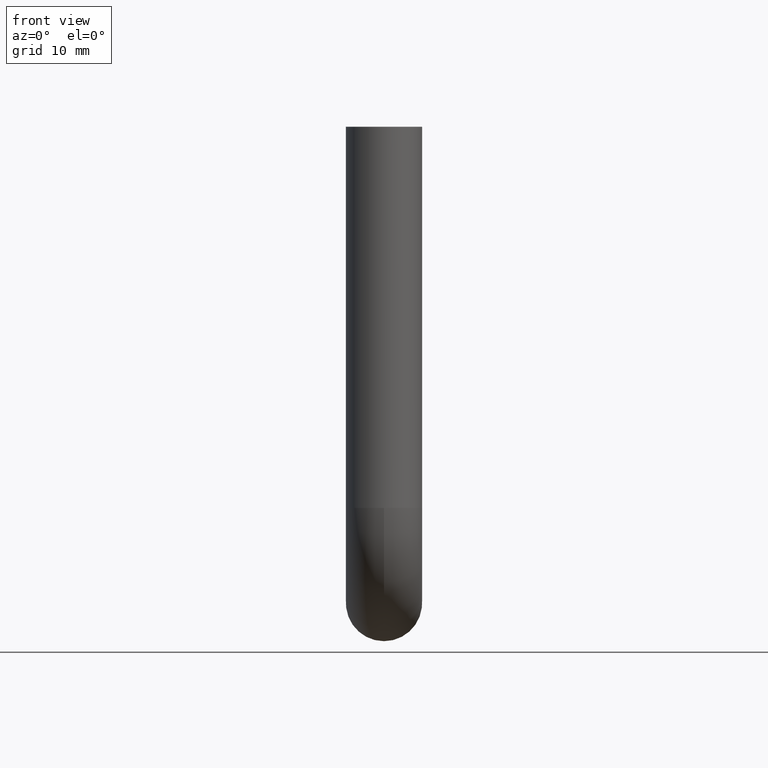
[diagram: clean part render]
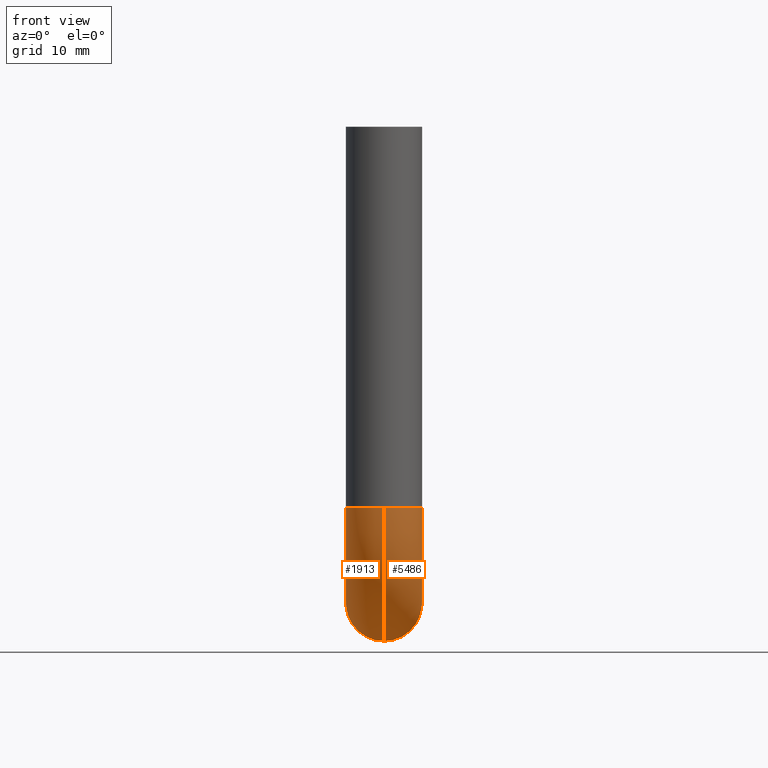
[diagram: same view with one multi-face feature highlighted, each face labeled with its STEP entity id]
A machine part, front view. The highlighted faces form ONE feature: a constant-radius fillet chain: 2 tangent blend faces with common blend radius 6 mm. The faces share edges in the B-rep.
Their STEP definitions:
[1] entity #5486 (Torus):
#335 = CARTESIAN_POINT ( 'NONE',  ( 7.347880794884114806E-16, 15.00000000000000000, -80.99999999999998579 ) ) ;
#791 = FACE_OUTER_BOUND ( 'NONE', #3436, .T. ) ;
#928 = DIRECTION ( 'NONE',  ( 0.000000000000000000, 0.000000000000000000, -1.000000000000000000 ) ) ;
#1084 = DIRECTION ( 'NONE',  ( 0.000000000000000000, 0.000000000000000000, 1.000000000000000000 ) ) ;
#1192 = VERTEX_POINT ( 'NONE', #7651 ) ;
#1432 = CARTESIAN_POINT ( 'NONE',  ( 6.000000000000000888, 0.000000000000000000, -60.00000000000000000 ) ) ;
#1637 = CIRCLE ( 'NONE', #8469, 8.999999999999994671 ) ;
#1750 = CARTESIAN_POINT ( 'NONE',  ( 0.000000000000000000, 15.00000000000000000, -60.00000000000000000 ) ) ;
#1871 = DIRECTION ( 'NONE',  ( 1.000000000000000000, 0.000000000000000000, 0.000000000000000000 ) ) ;
#2070 = ORIENTED_EDGE ( 'NONE', *, *, #7769, .T. ) ;
#2486 = VERTEX_POINT ( 'NONE', #335 ) ;
#2615 = ORIENTED_EDGE ( 'NONE', *, *, #2937, .F. ) ;
#2811 = DIRECTION ( 'NONE',  ( 0.000000000000000000, 0.000000000000000000, -1.000000000000000000 ) ) ;
#2937 = EDGE_CURVE ( 'NONE', #4955, #1192, #8272, .T. ) ;
#3436 = EDGE_LOOP ( 'NONE', ( #10654, #2070, #8893, #7530, #2615 ) ) ;
#3759 = AXIS2_PLACEMENT_3D ( 'NONE', #11131, #12173, #928 ) ;
#4955 = VERTEX_POINT ( 'NONE', #1432 ) ;
#5417 = CARTESIAN_POINT ( 'NONE',  ( 0.000000000000000000, 15.00000000000000000, -74.99999999999998579 ) ) ;
#5444 = AXIS2_PLACEMENT_3D ( 'NONE', #5417, #11039, #11284 ) ;
#5486 = ADVANCED_FACE ( 'NONE', ( #791 ), #11522, .T. ) ;
#5606 = CIRCLE ( 'NONE', #5444, 6.000000000000000888 ) ;
#5776 = VERTEX_POINT ( 'NONE', #5889 ) ;
#5889 = CARTESIAN_POINT ( 'NONE',  ( 0.000000000000000000, -6.000000000000001776, -60.00000000000000000 ) ) ;
#5996 = CIRCLE ( 'NONE', #8486, 6.000000000000000888 ) ;
#6546 = CARTESIAN_POINT ( 'NONE',  ( 0.000000000000000000, 15.00000000000000000, -68.99999999999997158 ) ) ;
#6774 = DIRECTION ( 'NONE',  ( 1.000000000000000000, 0.000000000000000000, 0.000000000000000000 ) ) ;
#6838 = DIRECTION ( 'NONE',  ( 1.000000000000000000, 0.000000000000000000, 0.000000000000000000 ) ) ;
#7122 = EDGE_CURVE ( 'NONE', #1192, #10622, #1637, .T. ) ;
#7530 = ORIENTED_EDGE ( 'NONE', *, *, #7122, .F. ) ;
#7651 = CARTESIAN_POINT ( 'NONE',  ( -7.347880794884119736E-16, 6.000000000000000888, -60.00000000000000000 ) ) ;
#7769 = EDGE_CURVE ( 'NONE', #5776, #2486, #12101, .T. ) ;
#7981 = AXIS2_PLACEMENT_3D ( 'NONE', #1750, #1871, #2811 ) ;
#8272 = CIRCLE ( 'NONE', #10126, 6.000000000000000888 ) ;
#8469 = AXIS2_PLACEMENT_3D ( 'NONE', #9709, #6838, #8831 ) ;
#8486 = AXIS2_PLACEMENT_3D ( 'NONE', #10537, #10660, #10700 ) ;
#8831 = DIRECTION ( 'NONE',  ( 0.000000000000000000, 0.000000000000000000, -1.000000000000000000 ) ) ;
#8893 = ORIENTED_EDGE ( 'NONE', *, *, #8990, .T. ) ;
#8990 = EDGE_CURVE ( 'NONE', #2486, #10622, #5606, .T. ) ;
#9709 = CARTESIAN_POINT ( 'NONE',  ( -7.347880794884120722E-16, 15.00000000000000000, -60.00000000000000000 ) ) ;
#10126 = AXIS2_PLACEMENT_3D ( 'NONE', #11207, #1084, #6774 ) ;
#10404 = EDGE_CURVE ( 'NONE', #5776, #4955, #5996, .T. ) ;
#10537 = CARTESIAN_POINT ( 'NONE',  ( 0.000000000000000000, 0.000000000000000000, -60.00000000000000000 ) ) ;
#10622 = VERTEX_POINT ( 'NONE', #6546 ) ;
#10654 = ORIENTED_EDGE ( 'NONE', *, *, #10404, .F. ) ;
#10660 = DIRECTION ( 'NONE',  ( 0.000000000000000000, 0.000000000000000000, 1.000000000000000000 ) ) ;
#10700 = DIRECTION ( 'NONE',  ( 1.000000000000000000, 0.000000000000000000, 0.000000000000000000 ) ) ;
#11039 = DIRECTION ( 'NONE',  ( 0.000000000000000000, -1.000000000000000000, 6.123233995736766036E-17 ) ) ;
#11131 = CARTESIAN_POINT ( 'NONE',  ( 0.000000000000000000, 15.00000000000000000, -60.00000000000000000 ) ) ;
#11207 = CARTESIAN_POINT ( 'NONE',  ( 0.000000000000000000, 0.000000000000000000, -60.00000000000000000 ) ) ;
#11284 = DIRECTION ( 'NONE',  ( 1.000000000000000000, 0.000000000000000000, 0.000000000000000000 ) ) ;
#11522 = TOROIDAL_SURFACE ( 'NONE', #3759, 15.00000000000000000, 6.000000000000000888 ) ;
#12101 = CIRCLE ( 'NONE', #7981, 21.00000000000000355 ) ;
#12173 = DIRECTION ( 'NONE',  ( 1.000000000000000000, 0.000000000000000000, 0.000000000000000000 ) ) ;
[2] entity #1913 (Torus):
#278 = DIRECTION ( 'NONE',  ( 0.000000000000000000, 0.000000000000000000, -1.000000000000000000 ) ) ;
#292 = DIRECTION ( 'NONE',  ( 1.000000000000000000, 0.000000000000000000, 0.000000000000000000 ) ) ;
#335 = CARTESIAN_POINT ( 'NONE',  ( 7.347880794884114806E-16, 15.00000000000000000, -80.99999999999998579 ) ) ;
#1061 = DIRECTION ( 'NONE',  ( 1.000000000000000000, 0.000000000000000000, 0.000000000000000000 ) ) ;
#1192 = VERTEX_POINT ( 'NONE', #7651 ) ;
#1637 = CIRCLE ( 'NONE', #8469, 8.999999999999994671 ) ;
#1750 = CARTESIAN_POINT ( 'NONE',  ( 0.000000000000000000, 15.00000000000000000, -60.00000000000000000 ) ) ;
#1871 = DIRECTION ( 'NONE',  ( 1.000000000000000000, 0.000000000000000000, 0.000000000000000000 ) ) ;
#1913 = ADVANCED_FACE ( 'NONE', ( #6411 ), #11417, .T. ) ;
#2096 = DIRECTION ( 'NONE',  ( 0.000000000000000000, 0.000000000000000000, 1.000000000000000000 ) ) ;
#2109 = ORIENTED_EDGE ( 'NONE', *, *, #7769, .F. ) ;
#2486 = VERTEX_POINT ( 'NONE', #335 ) ;
#2624 = DIRECTION ( 'NONE',  ( 1.000000000000000000, 0.000000000000000000, 0.000000000000000000 ) ) ;
#2811 = DIRECTION ( 'NONE',  ( 0.000000000000000000, 0.000000000000000000, -1.000000000000000000 ) ) ;
#2961 = AXIS2_PLACEMENT_3D ( 'NONE', #6724, #1061, #278 ) ;
#3109 = AXIS2_PLACEMENT_3D ( 'NONE', #4418, #4467, #2624 ) ;
#3648 = EDGE_CURVE ( 'NONE', #4515, #5776, #3664, .T. ) ;
#3664 = CIRCLE ( 'NONE', #4861, 6.000000000000000888 ) ;
#4418 = CARTESIAN_POINT ( 'NONE',  ( 0.000000000000000000, 15.00000000000000000, -74.99999999999998579 ) ) ;
#4467 = DIRECTION ( 'NONE',  ( 0.000000000000000000, -1.000000000000000000, 6.123233995736766036E-17 ) ) ;
#4515 = VERTEX_POINT ( 'NONE', #5319 ) ;
#4861 = AXIS2_PLACEMENT_3D ( 'NONE', #7782, #2096, #292 ) ;
#5319 = CARTESIAN_POINT ( 'NONE',  ( -6.000000000000000888, 7.347880794884120722E-16, -60.00000000000000000 ) ) ;
#5386 = EDGE_CURVE ( 'NONE', #10622, #2486, #8553, .T. ) ;
#5776 = VERTEX_POINT ( 'NONE', #5889 ) ;
#5889 = CARTESIAN_POINT ( 'NONE',  ( 0.000000000000000000, -6.000000000000001776, -60.00000000000000000 ) ) ;
#6411 = FACE_OUTER_BOUND ( 'NONE', #7789, .T. ) ;
#6546 = CARTESIAN_POINT ( 'NONE',  ( 0.000000000000000000, 15.00000000000000000, -68.99999999999997158 ) ) ;
#6724 = CARTESIAN_POINT ( 'NONE',  ( 0.000000000000000000, 15.00000000000000000, -60.00000000000000000 ) ) ;
#6838 = DIRECTION ( 'NONE',  ( 1.000000000000000000, 0.000000000000000000, 0.000000000000000000 ) ) ;
#7122 = EDGE_CURVE ( 'NONE', #1192, #10622, #1637, .T. ) ;
#7349 = CIRCLE ( 'NONE', #9423, 6.000000000000000888 ) ;
#7651 = CARTESIAN_POINT ( 'NONE',  ( -7.347880794884119736E-16, 6.000000000000000888, -60.00000000000000000 ) ) ;
#7769 = EDGE_CURVE ( 'NONE', #5776, #2486, #12101, .T. ) ;
#7782 = CARTESIAN_POINT ( 'NONE',  ( 0.000000000000000000, 0.000000000000000000, -60.00000000000000000 ) ) ;
#7789 = EDGE_LOOP ( 'NONE', ( #2109, #9896, #8573, #8459, #11692 ) ) ;
#7981 = AXIS2_PLACEMENT_3D ( 'NONE', #1750, #1871, #2811 ) ;
#8259 = EDGE_CURVE ( 'NONE', #1192, #4515, #7349, .T. ) ;
#8459 = ORIENTED_EDGE ( 'NONE', *, *, #7122, .T. ) ;
#8469 = AXIS2_PLACEMENT_3D ( 'NONE', #9709, #6838, #8831 ) ;
#8553 = CIRCLE ( 'NONE', #3109, 6.000000000000000888 ) ;
#8573 = ORIENTED_EDGE ( 'NONE', *, *, #8259, .F. ) ;
#8831 = DIRECTION ( 'NONE',  ( 0.000000000000000000, 0.000000000000000000, -1.000000000000000000 ) ) ;
#9153 = DIRECTION ( 'NONE',  ( 1.000000000000000000, 0.000000000000000000, 0.000000000000000000 ) ) ;
#9200 = CARTESIAN_POINT ( 'NONE',  ( 0.000000000000000000, 0.000000000000000000, -60.00000000000000000 ) ) ;
#9423 = AXIS2_PLACEMENT_3D ( 'NONE', #9200, #11862, #9153 ) ;
#9709 = CARTESIAN_POINT ( 'NONE',  ( -7.347880794884120722E-16, 15.00000000000000000, -60.00000000000000000 ) ) ;
#9896 = ORIENTED_EDGE ( 'NONE', *, *, #3648, .F. ) ;
#10622 = VERTEX_POINT ( 'NONE', #6546 ) ;
#11417 = TOROIDAL_SURFACE ( 'NONE', #2961, 15.00000000000000000, 6.000000000000000888 ) ;
#11692 = ORIENTED_EDGE ( 'NONE', *, *, #5386, .T. ) ;
#11862 = DIRECTION ( 'NONE',  ( 0.000000000000000000, 0.000000000000000000, 1.000000000000000000 ) ) ;
#12101 = CIRCLE ( 'NONE', #7981, 21.00000000000000355 ) ;